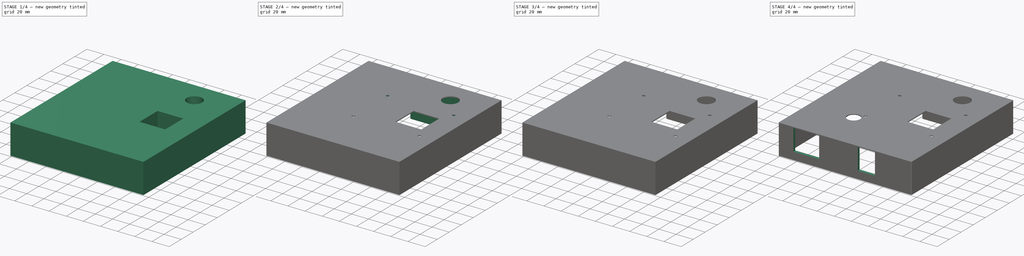
[diagram: build sequence overview — one tinted view per stage of 4, left to right]
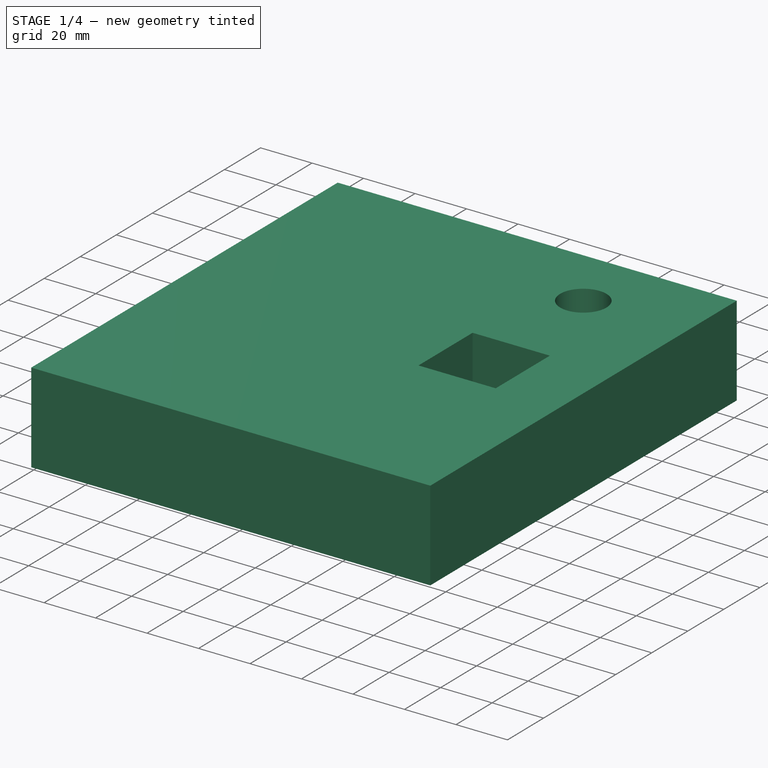
[diagram: stage 1 of 4 — iso view after this stage's code; geometry added in this stage tinted green]
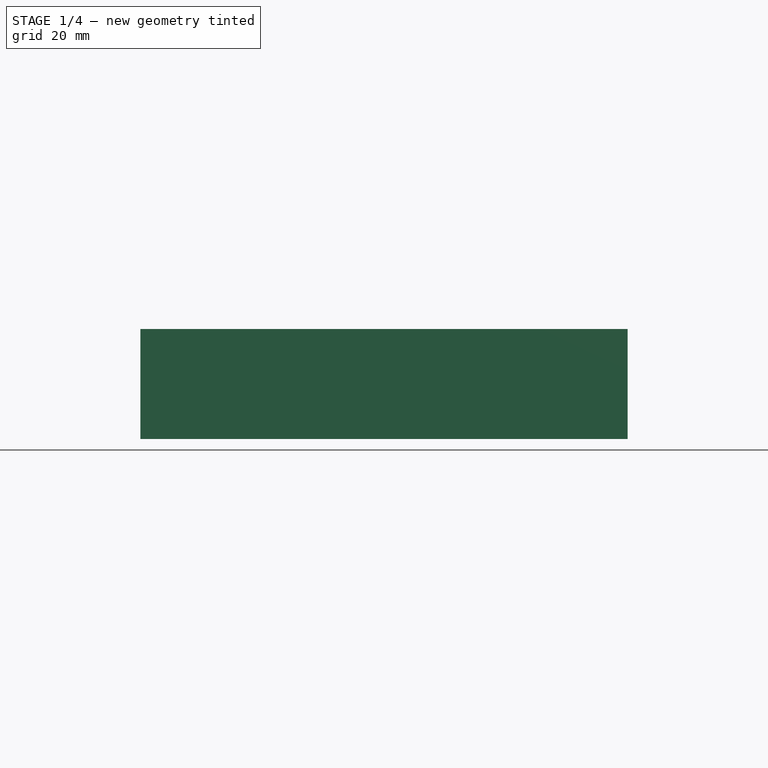
[diagram: stage 1 of 4 — front view after this stage's code; geometry added in this stage tinted green]
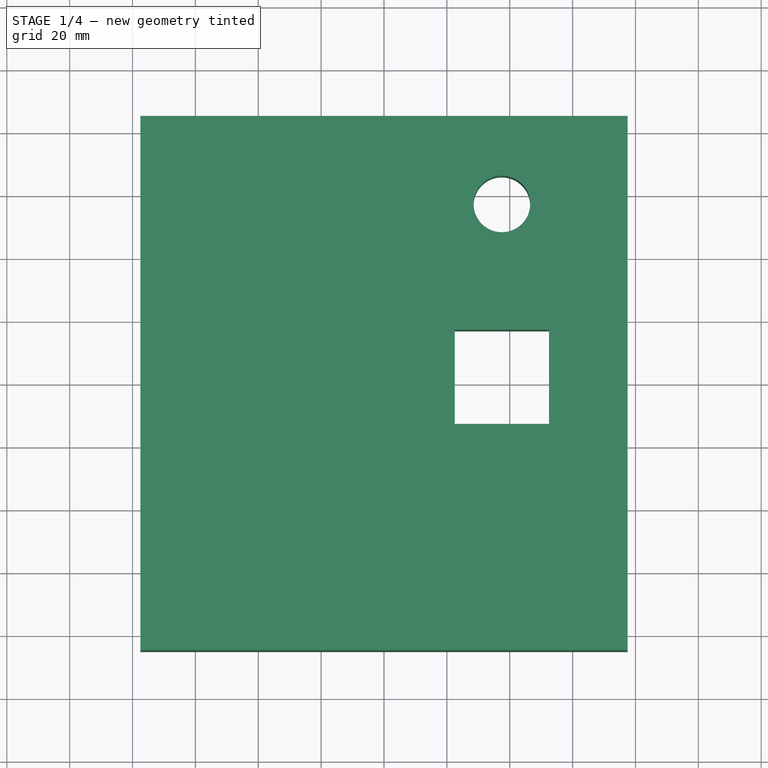
[diagram: stage 1 of 4 — top view after this stage's code; geometry added in this stage tinted green]
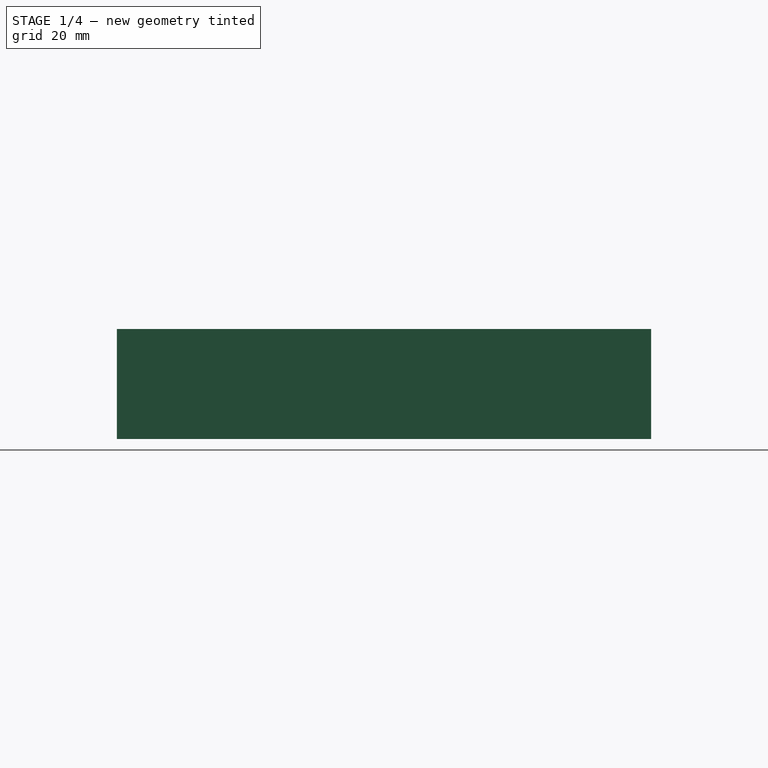
[diagram: stage 1 of 4 — right view after this stage's code; geometry added in this stage tinted green]
FCSTD DOCUMENT  (FreeCAD 0.20R29603 (Git))
Label: kotelo1
License: All rights reserved
LicenseURL: http://en.wikipedia.org/wiki/All_rights_reserved
objects: PartDesign::ShapeBinder×8, PartDesign::Pocket×8, Sketcher::SketchObject×5, PartDesign::Pad×3, PartDesign::Fillet×1, PartDesign::Body×1
note: 38 computed .brp shape members not serialized (recipe doc carries the construction recipe); baked Part::Feature solids carry a one-line shape summary decoded from their .brp

FEATURE [Sketcher::SketchObject] Sketch
  FullyConstrained = true
  MapMode = 5
  Support = -> [XY_Plane]
  sketch-geometry (27):
    g0: LineSegment StartX=-77.5 StartY=85 StartZ=0 EndX=77.5 EndY=85 EndZ=0
    g1: LineSegment StartX=77.5 StartY=85 StartZ=0 EndX=77.5 EndY=-85 EndZ=0
    g2: LineSegment StartX=77.5 StartY=-85 StartZ=0 EndX=-77.5 EndY=-85 EndZ=0
    g3: LineSegment StartX=-77.5 StartY=-85 StartZ=0 EndX=-77.5 EndY=85 EndZ=0
    g4: LineSegment StartX=22.5 StartY=17 StartZ=0 EndX=52.5 EndY=17 EndZ=0
    g5: LineSegment StartX=52.5 StartY=17 StartZ=0 EndX=52.5 EndY=-13 EndZ=0
    g6: LineSegment StartX=52.5 StartY=-13 StartZ=0 EndX=22.5 EndY=-13 EndZ=0
    g7: LineSegment StartX=22.5 StartY=-13 StartZ=0 EndX=22.5 EndY=17 EndZ=0
    g8: Circle CenterX=37.5 CenterY=57 CenterZ=0 NormalX=0 NormalY=0 NormalZ=1 AngleXU=0 Radius=9
    g9: GeomPoint X=37.5 Y=2 Z=0
    g10: Circle CenterX=-17.5 CenterY=31 CenterZ=0 NormalX=0 NormalY=0 NormalZ=1 AngleXU=0 Radius=1.7
    g11: Circle CenterX=59.5 CenterY=-26 CenterZ=0 NormalX=0 NormalY=0 NormalZ=1 AngleXU=0 Radius=1.7
    g12: Circle CenterX=-17.5 CenterY=-26 CenterZ=0 NormalX=0 NormalY=0 NormalZ=1 AngleXU=0 Radius=1.7
    g13: Circle CenterX=59.5 CenterY=31 CenterZ=0 NormalX=0 NormalY=0 NormalZ=1 AngleXU=0 Radius=1.7
    g14: LineSegment StartX=-17.5 StartY=31 StartZ=0 EndX=59.5 EndY=31 EndZ=0
    g15: LineSegment StartX=59.5 StartY=31 StartZ=0 EndX=59.5 EndY=-26 EndZ=0
    g16: LineSegment StartX=59.5 StartY=-26 StartZ=0 EndX=-17.5 EndY=-26 EndZ=0
    g17: LineSegment StartX=-17.5 StartY=-26 StartZ=0 EndX=-17.5 EndY=31 EndZ=0
    g18: LineSegment StartX=-74.5 StartY=82 StartZ=0 EndX=74.5 EndY=82 EndZ=0
    g19: LineSegment StartX=74.5 StartY=82 StartZ=0 EndX=74.5 EndY=-82 EndZ=0
    g20: LineSegment StartX=74.5 StartY=-82 StartZ=0 EndX=-74.5 EndY=-82 EndZ=0
    g21: LineSegment StartX=-74.5 StartY=-82 StartZ=0 EndX=-74.5 EndY=82 EndZ=0
    g22: LineSegment StartX=5.5 StartY=39 StartZ=0 EndX=65.5 EndY=39 EndZ=0
    g23: LineSegment StartX=65.5 StartY=39 StartZ=0 EndX=65.5 EndY=36 EndZ=0
    g24: LineSegment StartX=65.5 StartY=36 StartZ=0 EndX=5.5 EndY=36 EndZ=0
    g25: LineSegment StartX=5.5 StartY=36 StartZ=0 EndX=5.5 EndY=39 EndZ=0
    g26: Circle CenterX=-25.5 CenterY=-34 CenterZ=0 NormalX=0 NormalY=0 NormalZ=1 AngleXU=0 Radius=7.5
  constraints (74):
    c: Coincident(g0,g1)
    c: Coincident(g1,g2)
    c: Coincident(g2,g3)
    c: Coincident(g3,g0)
    c: Horizontal(g0)
    c: Horizontal(g2)
    c: Vertical(g1)
    c: Vertical(g3)
    c: DistanceX(g0,g0) = 155
    c: DistanceY(g1,g0) = 170
    c: Symmetric(g2,g0,g-1)
    c: Coincident(g4,g5)
    c: Coincident(g5,g6)
    c: Coincident(g6,g7)
    c: Coincident(g7,g4)
    c: Horizontal(g4)
    c: Horizontal(g6)
    c: Vertical(g5)
    c: Vertical(g7)
    c: DistanceY(g6,g4) = 30
    c: DistanceX(g4,g4) = 30
    c: Diameter(g8) = 18
    c: Symmetric(g6,g4,g9)
    c: Vertical(g9,g8)
    c: DistanceY(g9,g8) = 55
    c: DistanceX(g8,g0) = 40
    c: DistanceY(g8,g0) = 28
    c: Diameter(g10) = 3.4
    c: Diameter(g12) = 3.4
    c: Diameter(g13) = 3.4
    c: Diameter(g11) = 3.4
    c: Coincident(g14,g15)
    c: Coincident(g15,g16)
    c: Coincident(g16,g17)
    c: Coincident(g17,g14)
    c: Horizontal(g14)
    c: Horizontal(g16)
    c: Vertical(g15)
    c: Vertical(g17)
    c: DistanceX(g14,g14) = 77
    c: DistanceY(g15,g14) = 57
    c: Coincident(g10,g14)
    c: Coincident(g13,g14)
    c: Coincident(g12,g16)
    c: Coincident(g11,g15)
    c: DistanceY(g11,g9) = 28
    c: DistanceX(g9,g11) = 22
    c: Coincident(g18,g19)
    c: Coincident(g19,g20)
    c: Coincident(g20,g21)
    c: Coincident(g21,g18)
    c: Horizontal(g18)
    c: Horizontal(g20)
    c: Vertical(g19)
    c: Vertical(g21)
    c: DistanceX(g18,g18) = 149
    c: DistanceX(g0,g18) = 3
    c: DistanceY(g18,g0) = 3
    c: DistanceY(g20,g18) = 164
    c: Coincident(g22,g23)
    c: Coincident(g23,g24)
    c: Coincident(g24,g25)
    c: Coincident(g25,g22)
    c: Horizontal(g22)
    c: Horizontal(g24)
    c: Vertical(g23)
    c: Vertical(g25)
    c: DistanceY(g13,g23) = 5
    c: DistanceY(g23,g22) = 3
    c: DistanceX(g24,g23) = 60
    c: Diameter(g26) = 15
    c: DistanceX(g26,g12) = 8
    c: DistanceY(g26,g12) = 8
    c: DistanceX(g23,g13) = -6
FEATURE [PartDesign::ShapeBinder] ShapeBinder
  Support = -> [Sketch]
  TraceSupport = false
FEATURE [PartDesign::Pad] Pad
  Direction = (0,0,1)
  Length = 35
  Length2 = 10
  Profile = -> ShapeBinder
  Reversed = true
  Type = 0
FEATURE [PartDesign::ShapeBinder] ShapeBinder001
  Support = -> [Sketch]
  TraceSupport = false
FEATURE [PartDesign::Pocket] Pocket
  BaseFeature = -> Pad
  Direction = (0,0,-1)
  Length = 5
  Length2 = 5
  Profile = -> ShapeBinder001
  Type = 1
FEATURE [PartDesign::ShapeBinder] ShapeBinder002
  Support = -> [Sketch]
  TraceSupport = false
FEATURE [PartDesign::Pocket] Pocket001
  BaseFeature = -> Pocket
  Direction = (0,0,-1)
  Length = 5
  Length2 = 5
  Profile = -> ShapeBinder002
  Type = 1
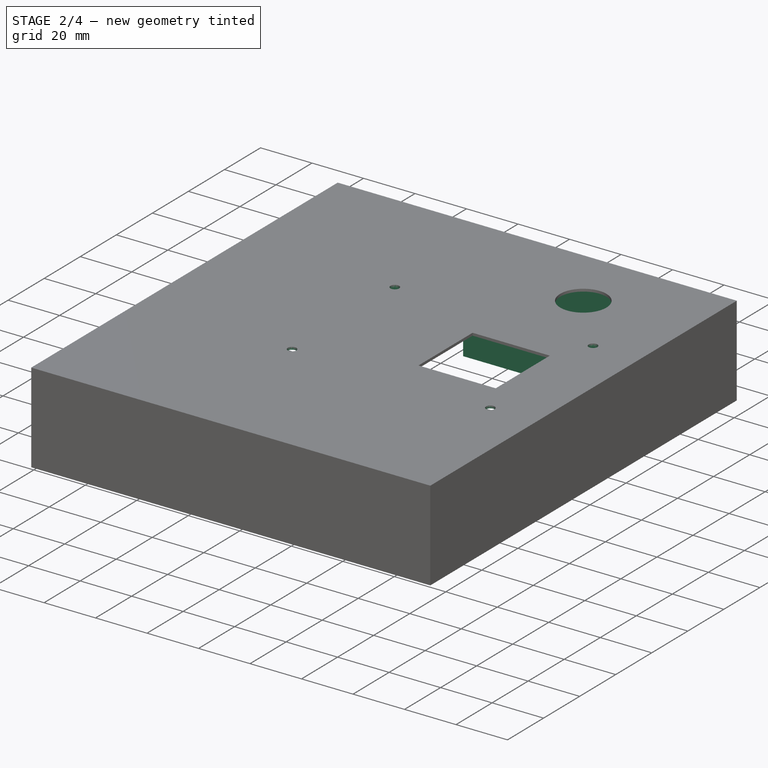
[diagram: stage 2 of 4 — iso view after this stage's code; geometry added in this stage tinted green]
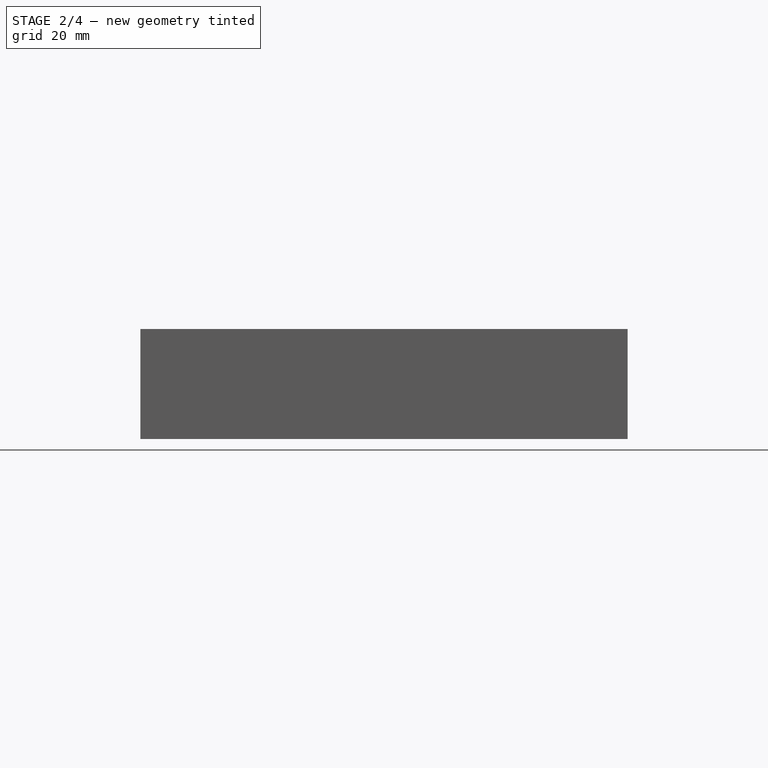
[diagram: stage 2 of 4 — front view after this stage's code; geometry added in this stage tinted green]
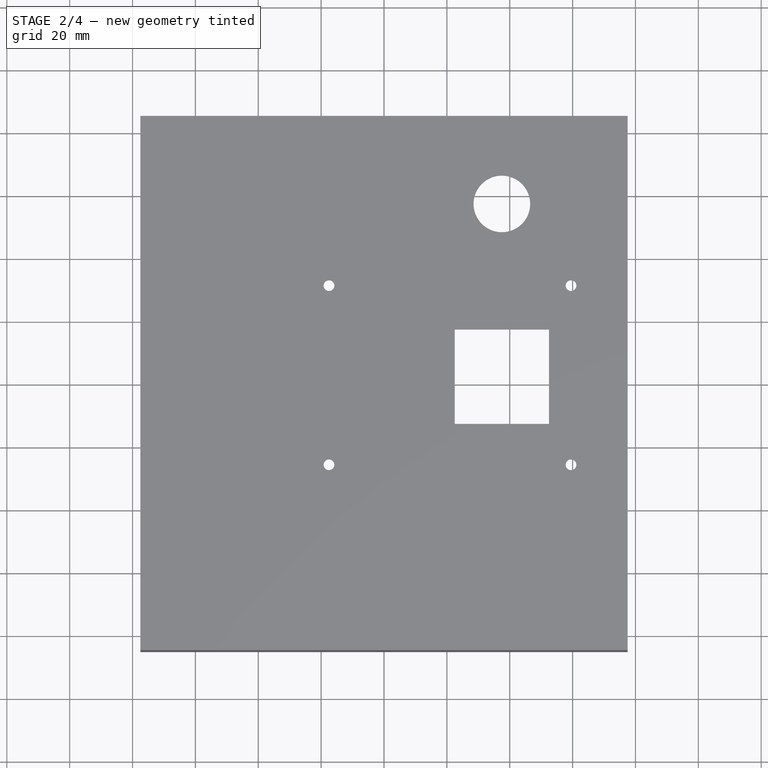
[diagram: stage 2 of 4 — top view after this stage's code; geometry added in this stage tinted green]
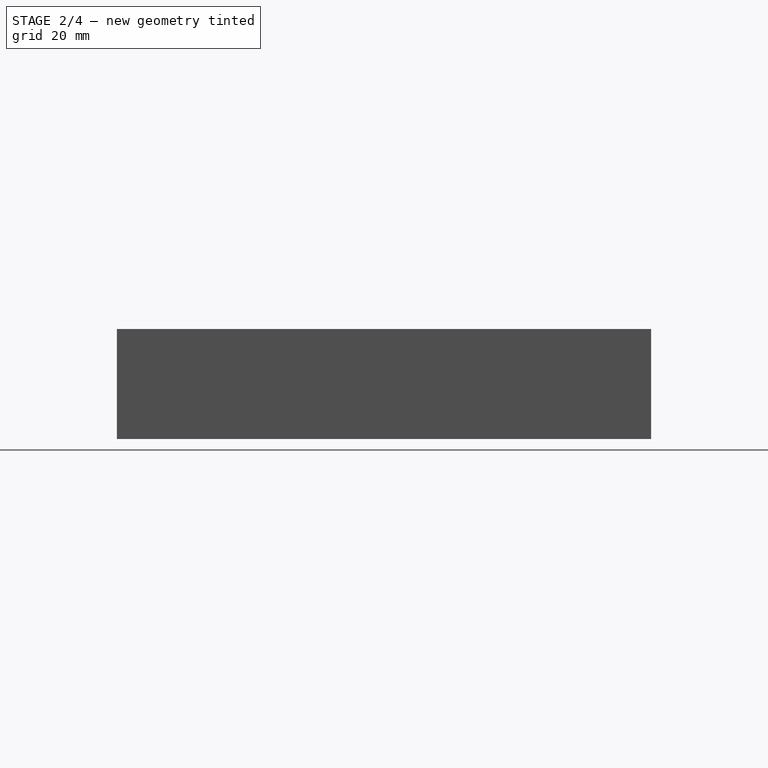
[diagram: stage 2 of 4 — right view after this stage's code; geometry added in this stage tinted green]
FEATURE [PartDesign::ShapeBinder] ShapeBinder003
  Support = -> [Sketch]
  TraceSupport = false
FEATURE [PartDesign::Pocket] Pocket002
  BaseFeature = -> Pocket001
  Direction = (0,0,-1)
  Length = 5
  Length2 = 5
  Profile = -> ShapeBinder003
  Type = 1
FEATURE [Sketcher::SketchObject] Sketch001
  AttachmentOffset = pos=(0,0,-1) rot=(0,0,1;0rad)
  ExternalGeometry = -> [Sketch]
  FullyConstrained = true
  MapMode = 5
  Placement = pos=(0,0,-1) rot=(0,0,1;0rad)
  Support = -> [XY_Plane]
  sketch-geometry (4):
    g0: LineSegment StartX=-74.5 StartY=82 StartZ=0 EndX=74.5 EndY=82 EndZ=0
    g1: LineSegment StartX=74.5 StartY=82 StartZ=0 EndX=74.5 EndY=-82 EndZ=0
    g2: LineSegment StartX=74.5 StartY=-82 StartZ=0 EndX=-74.5 EndY=-82 EndZ=0
    g3: LineSegment StartX=-74.5 StartY=-82 StartZ=0 EndX=-74.5 EndY=82 EndZ=0
  constraints (10):
    c: Coincident(g0,g1)
    c: Coincident(g1,g2)
    c: Coincident(g2,g3)
    c: Coincident(g3,g0)
    c: Horizontal(g0)
    c: Horizontal(g2)
    c: Vertical(g1)
    c: Vertical(g3)
    c: Coincident(g0,g-4)
    c: Coincident(g1,g-6)
FEATURE [PartDesign::Pocket] Pocket003
  BaseFeature = -> Pocket002
  Direction = (0,0,-1)
  Length = 5
  Length2 = 5
  Profile = -> Sketch001
  ReferenceAxis = -> Sketch001 [N_Axis]
  Type = 1
FEATURE [PartDesign::ShapeBinder] ShapeBinder004
  Support = -> [Sketch]
  TraceSupport = false
FEATURE [PartDesign::Pad] Pad001
  BaseFeature = -> Pocket003
  Direction = (0,0,1)
  Length = 20
  Length2 = 10
  Profile = -> ShapeBinder004
  Reversed = true
  Type = 0
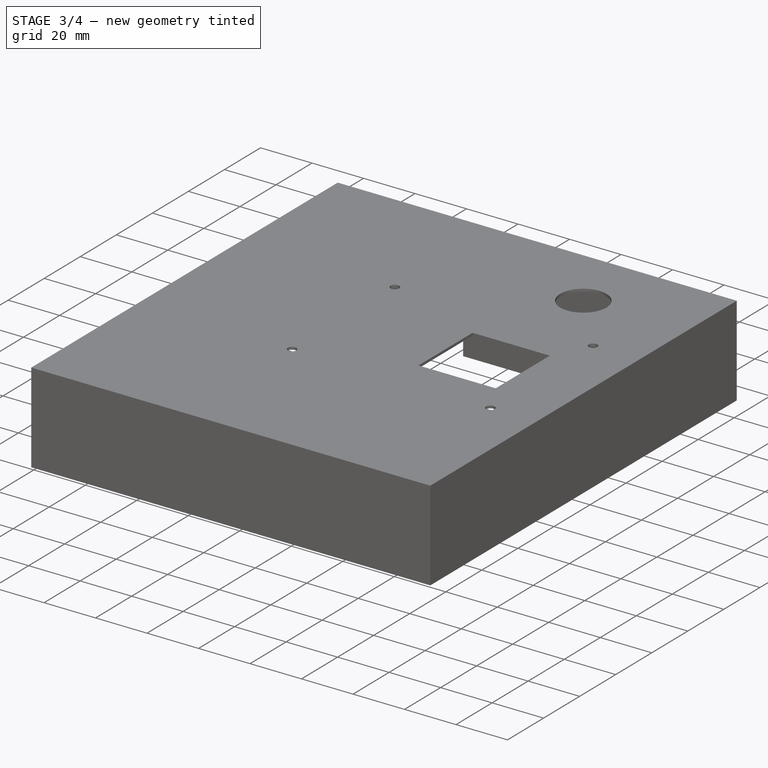
[diagram: stage 3 of 4 — iso view after this stage's code; geometry added in this stage tinted green]
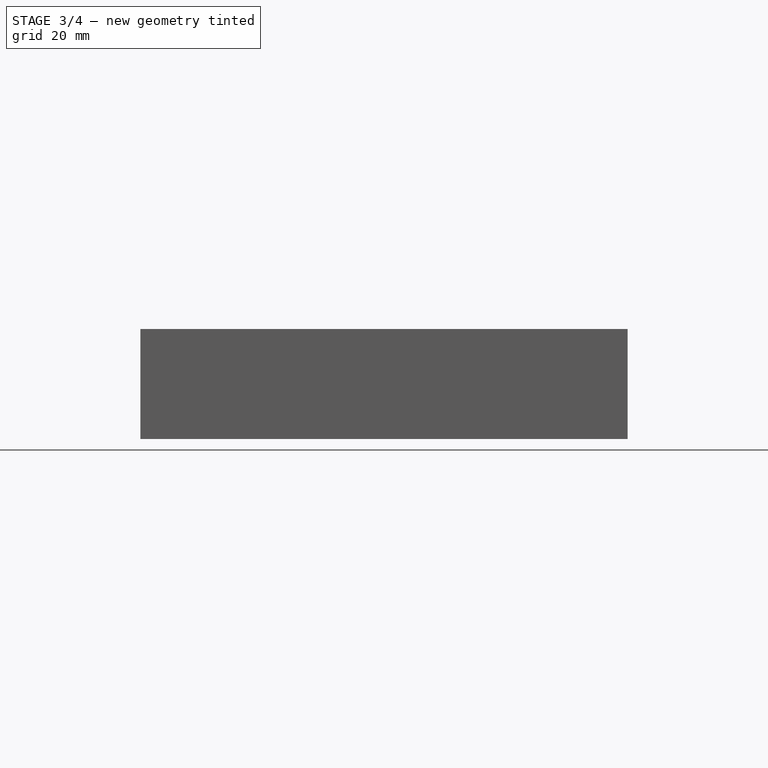
[diagram: stage 3 of 4 — front view after this stage's code; geometry added in this stage tinted green]
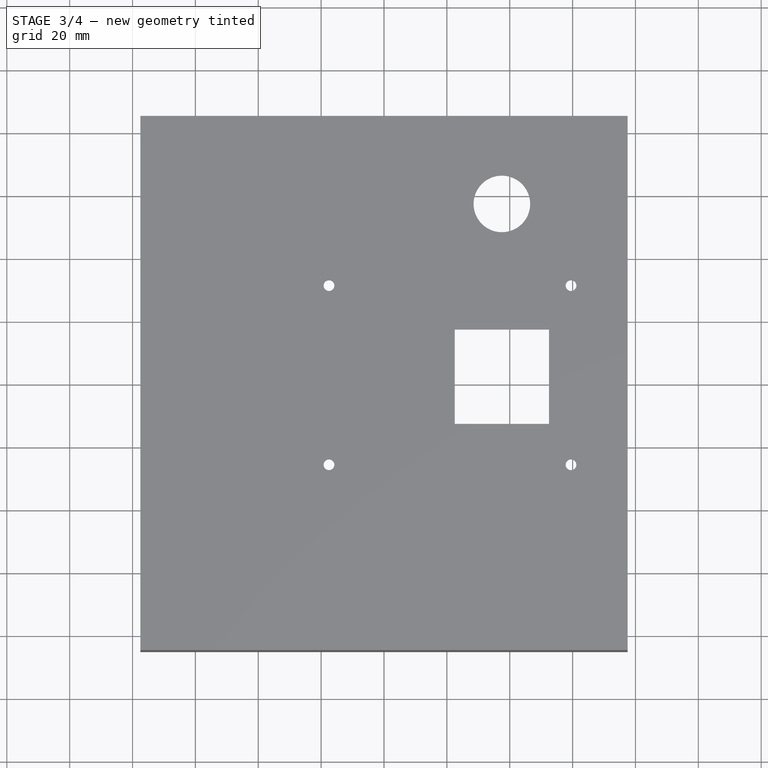
[diagram: stage 3 of 4 — top view after this stage's code; geometry added in this stage tinted green]
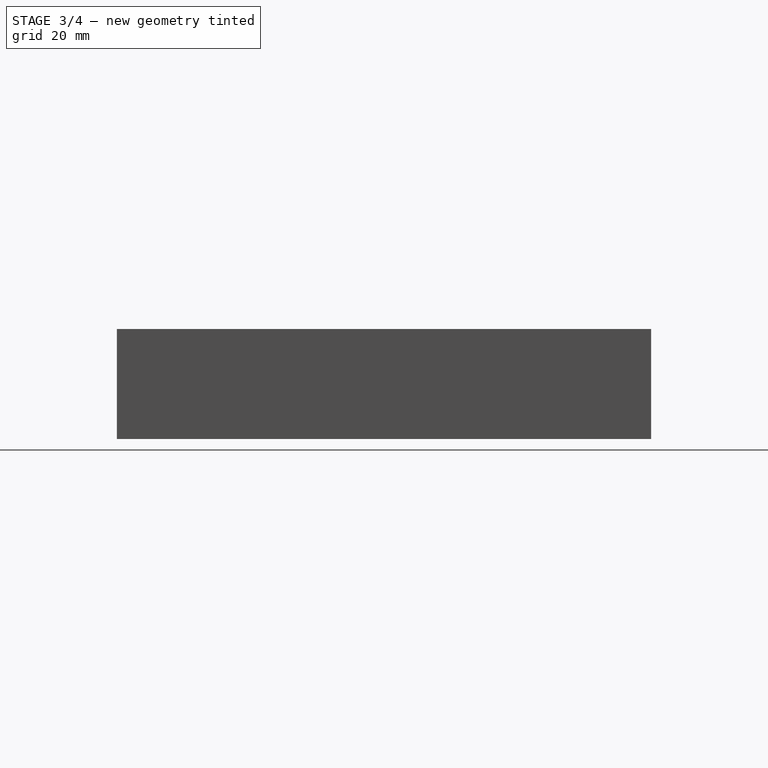
[diagram: stage 3 of 4 — right view after this stage's code; geometry added in this stage tinted green]
FEATURE [Sketcher::SketchObject] Sketch002
  ExternalGeometry = -> [Pad001]
  FullyConstrained = true
  MapMode = 5
  Placement = pos=(0,0,0) rot=(1,0,0;1.5708rad)
  Support = -> [XZ_Plane]
  sketch-geometry (8):
    g0: LineSegment StartX=44.5 StartY=-11 StartZ=0 EndX=59.5 EndY=-11 EndZ=0
    g1: LineSegment StartX=59.5 StartY=-11 StartZ=0 EndX=59.5 EndY=-16 EndZ=0
    g2: LineSegment StartX=59.5 StartY=-16 StartZ=0 EndX=44.5 EndY=-16 EndZ=0
    g3: LineSegment StartX=44.5 StartY=-16 StartZ=0 EndX=44.5 EndY=-11 EndZ=0
    g4: LineSegment StartX=44.5 StartY=-22 StartZ=0 EndX=59.5 EndY=-22 EndZ=0
    g5: LineSegment StartX=59.5 StartY=-22 StartZ=0 EndX=59.5 EndY=-27 EndZ=0
    g6: LineSegment StartX=59.5 StartY=-27 StartZ=0 EndX=44.5 EndY=-27 EndZ=0
    g7: LineSegment StartX=44.5 StartY=-27 StartZ=0 EndX=44.5 EndY=-22 EndZ=0
  constraints (24):
    c: Coincident(g0,g1)
    c: Coincident(g1,g2)
    c: Coincident(g2,g3)
    c: Coincident(g3,g0)
    c: Horizontal(g0)
    c: Horizontal(g2)
    c: Vertical(g1)
    c: Vertical(g3)
    c: DistanceX(g0,g0) = 15
    c: DistanceY(g1,g0) = 5
    c: DistanceY(g-4,g1) = 4
    c: DistanceX(g1,g-4) = 6
    c: Coincident(g4,g5)
    c: Coincident(g5,g6)
    c: Coincident(g6,g7)
    c: Coincident(g7,g4)
    c: Horizontal(g4)
    c: Horizontal(g6)
    c: Vertical(g5)
    c: Vertical(g7)
    c: DistanceY(g4,g1) = 6
    c: DistanceY(g5,g4) = 5
    c: DistanceX(g4,g4) = 15
    c: Vertical(g4,g1)
FEATURE [PartDesign::Pocket] Pocket004
  BaseFeature = -> Pad001
  Direction = (0,1,2e-16)
  Length = 5
  Length2 = 5
  Profile = -> Sketch002
  ReferenceAxis = -> Sketch002 [N_Axis]
  Type = 1
FEATURE [Sketcher::SketchObject] Sketch003
  AttachmentOffset = pos=(0,0,-1) rot=(0,0,1;0rad)
  ExternalGeometry = -> [Sketch]
  FullyConstrained = true
  MapMode = 5
  Placement = pos=(0,0,-1) rot=(0,0,1;0rad)
  Support = -> [XY_Plane]
  sketch-geometry (20):
    g0: ArcOfCircle CenterX=-74.5 CenterY=82 CenterZ=0 NormalX=0 NormalY=0 NormalZ=1 AngleXU=0 Radius=6 StartAngle=4.71239 EndAngle=6.28319
    g1: Circle CenterX=-72.3787 CenterY=79.8787 CenterZ=0 NormalX=0 NormalY=0 NormalZ=1 AngleXU=0 Radius=1
    g2: LineSegment StartX=-74.5 StartY=82 StartZ=0 EndX=-72.3787 EndY=79.8787 EndZ=0
    g3: Circle CenterX=72.3787 CenterY=-79.8787 CenterZ=0 NormalX=0 NormalY=0 NormalZ=1 AngleXU=0 Radius=1
    g4: Circle CenterX=72.3787 CenterY=79.8787 CenterZ=0 NormalX=0 NormalY=0 NormalZ=1 AngleXU=0 Radius=1
    g5: Circle CenterX=-72.3787 CenterY=-79.8787 CenterZ=0 NormalX=0 NormalY=0 NormalZ=1 AngleXU=0 Radius=1
    g6: ArcOfCircle CenterX=-74.5 CenterY=-82 CenterZ=0 NormalX=0 NormalY=0 NormalZ=1 AngleXU=0 Radius=6 StartAngle=5e-16 EndAngle=1.5708
    g7: LineSegment StartX=-72.3787 StartY=-79.8787 StartZ=0 EndX=-74.5 EndY=-82 EndZ=0
    g8: ArcOfCircle CenterX=74.5 CenterY=-82 CenterZ=0 NormalX=0 NormalY=0 NormalZ=1 AngleXU=0 Radius=6 StartAngle=1.5708 EndAngle=3.14159
    g9: LineSegment StartX=72.3787 StartY=-79.8787 StartZ=0 EndX=74.5 EndY=-82 EndZ=0
    g10: ArcOfCircle CenterX=74.5 CenterY=82 CenterZ=0 NormalX=0 NormalY=0 NormalZ=1 AngleXU=0 Radius=6 StartAngle=3.14159 EndAngle=4.71239
    g11: LineSegment StartX=72.3787 StartY=79.8787 StartZ=0 EndX=74.5 EndY=82 EndZ=0
    g12: LineSegment StartX=-74.5 StartY=76 StartZ=0 EndX=-74.5 EndY=82 EndZ=0
    g13: LineSegment StartX=-74.5 StartY=82 StartZ=0 EndX=-68.5 EndY=82 EndZ=0
    g14: LineSegment StartX=68.5 StartY=82 StartZ=0 EndX=74.5 EndY=82 EndZ=0
    g15: LineSegment StartX=74.5 StartY=76 StartZ=0 EndX=74.5 EndY=82 EndZ=0
    g16: LineSegment StartX=68.5 StartY=-82 StartZ=0 EndX=74.5 EndY=-82 EndZ=0
    g17: LineSegment StartX=74.5 StartY=-82 StartZ=0 EndX=74.5 EndY=-76 EndZ=0
    g18: LineSegment StartX=-74.5 StartY=-76 StartZ=0 EndX=-74.5 EndY=-82 EndZ=0
    g19: LineSegment StartX=-74.5 StartY=-82 StartZ=0 EndX=-68.5 EndY=-82 EndZ=0
  constraints (52):
    c: Coincident(g0,g-5)
    c: Radius(g0) = 6
    c: Angle(g0) = 1.5708
    c: Diameter(g1) = 2
    c: Distance(g0,g1) = 3
    c: Coincident(g2,g0)
    c: Coincident(g2,g1)
    c: Angle(g-7,g2) = 0.785398
    c: Equal(g1,g3)
    c: Equal(g1,g4)
    c: Equal(g1,g5)
    c: Coincident(g6,g-10)
    c: PointOnObject(g6,g-7)
    c: PointOnObject(g6,g-10)
    c: Radius(g6) = 6
    c: Distance(g5,g6) = 3
    c: Coincident(g7,g5)
    c: Coincident(g7,g6)
    c: Angle(g-10,g7) = 0.785398
    c: Coincident(g8,g-10)
    c: PointOnObject(g8,g-9)
    c: PointOnObject(g8,g-10)
    c: Radius(g8) = 6
    c: Distance(g3,g8) = 3
    c: Coincident(g9,g3)
    c: Coincident(g9,g8)
    c: Angle(g9,g-10) = 0.785398
    c: Coincident(g10,g-9)
    c: PointOnObject(g10,g-9)
    c: PointOnObject(g10,g-8)
    c: Radius(g10) = 6
    c: Distance(g4,g10) = 3
    c: Coincident(g11,g4)
    c: Coincident(g11,g10)
    c: Angle(g-8,g11) = 0.785398
    c: Coincident(g12,g0)
    c: Coincident(g12,g0)
    c: Vertical(g12)
    c: Coincident(g13,g0)
    c: Coincident(g13,g0)
    c: Coincident(g14,g10)
    c: Coincident(g14,g10)
    c: Coincident(g15,g10)
    c: Coincident(g15,g10)
    c: Coincident(g16,g8)
    c: Coincident(g16,g8)
    c: Coincident(g17,g8)
    c: Coincident(g17,g8)
    c: Coincident(g18,g6)
    c: Coincident(g18,g6)
    c: Coincident(g19,g6)
    c: Coincident(g19,g6)
FEATURE [PartDesign::ShapeBinder] ShapeBinder005
  Support = -> [Sketch003]
  TraceSupport = false
FEATURE [PartDesign::Pad] Pad002
  BaseFeature = -> Pocket004
  Direction = (0,0,1)
  Length = 34
  Length2 = 10
  Profile = -> ShapeBinder005
  Reversed = true
  Type = 0
FEATURE [PartDesign::ShapeBinder] ShapeBinder006
  Support = -> [Sketch003]
  TraceSupport = false
FEATURE [PartDesign::Pocket] Pocket005
  BaseFeature = -> Pad002
  Direction = (0,0,-1)
  Length = 5
  Length2 = 5
  Profile = -> ShapeBinder006
  Type = 1
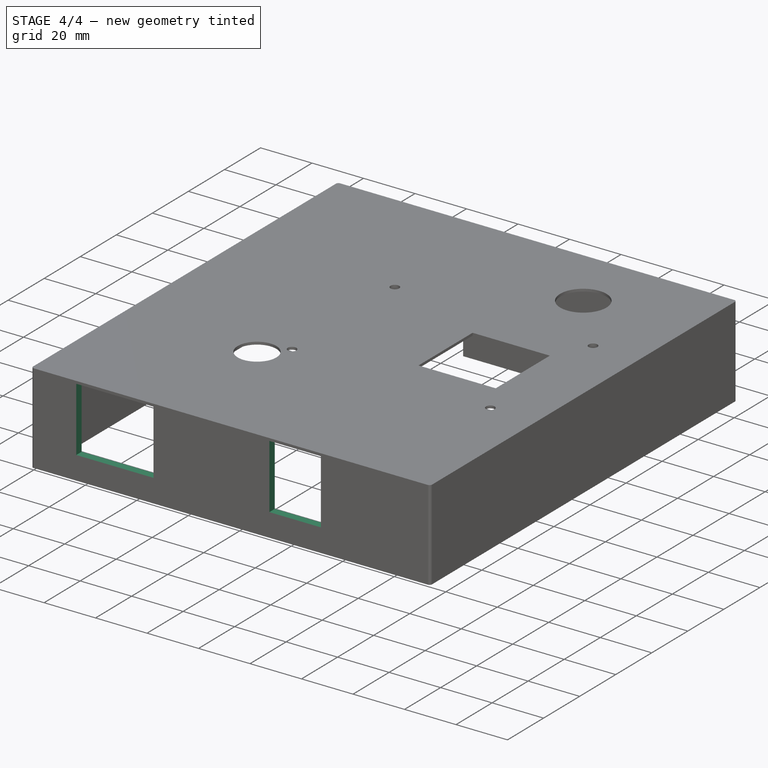
[diagram: stage 4 of 4 — iso view after this stage's code; geometry added in this stage tinted green]
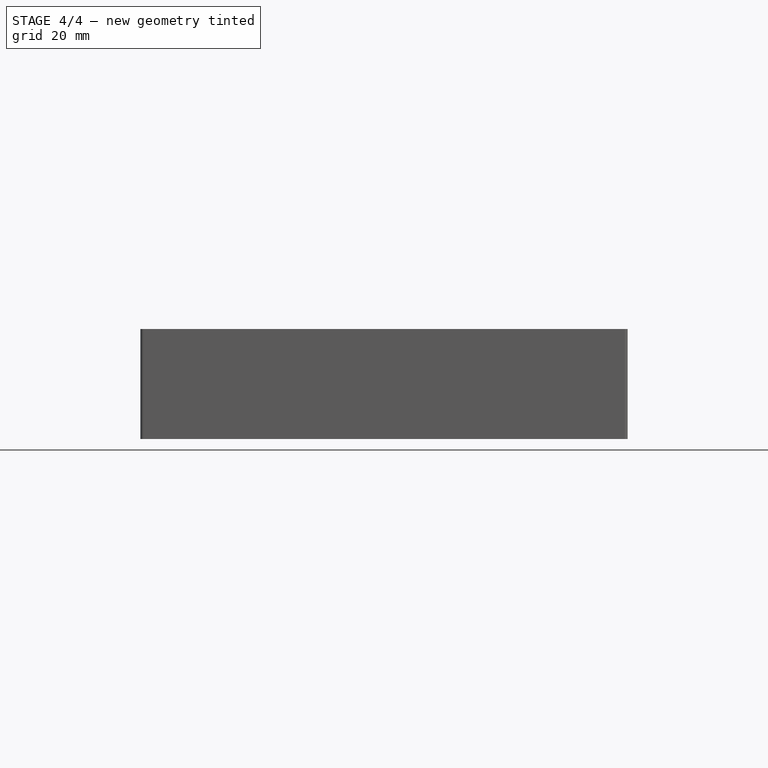
[diagram: stage 4 of 4 — front view after this stage's code; geometry added in this stage tinted green]
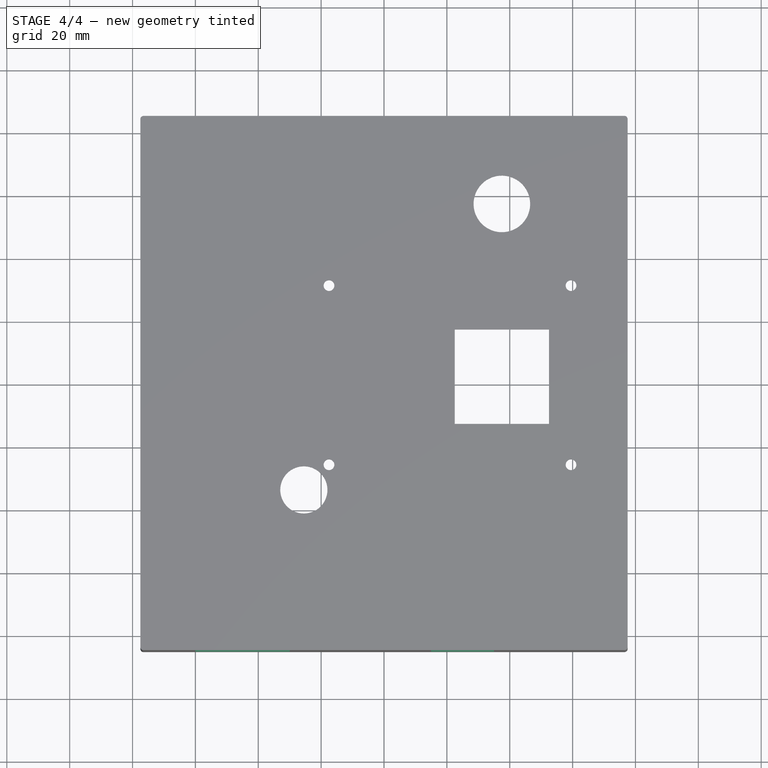
[diagram: stage 4 of 4 — top view after this stage's code; geometry added in this stage tinted green]
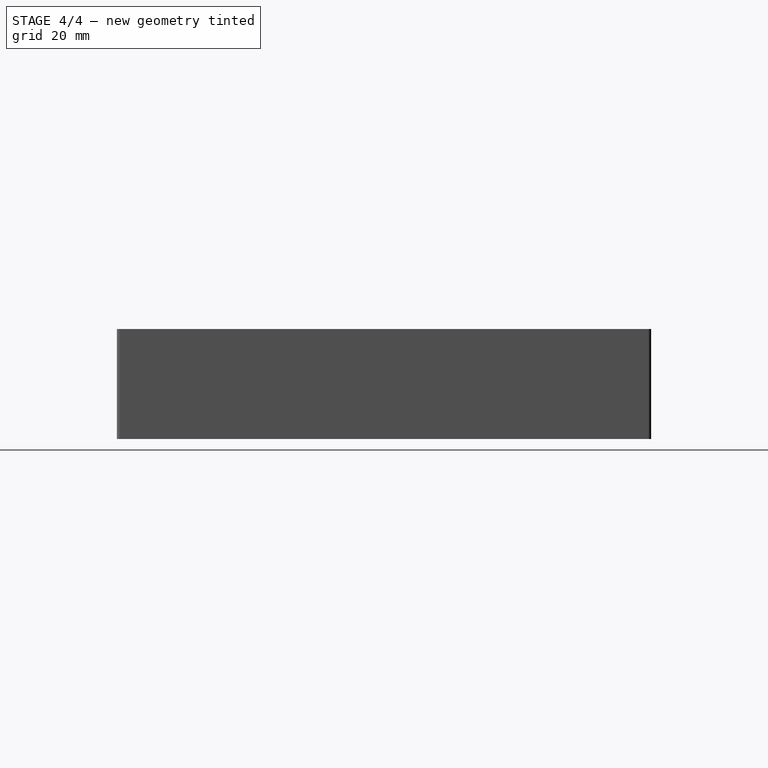
[diagram: stage 4 of 4 — right view after this stage's code; geometry added in this stage tinted green]
FEATURE [Sketcher::SketchObject] Sketch004
  FullyConstrained = true
  MapMode = 5
  Placement = pos=(0,0,0) rot=(1,0,0;1.5708rad)
  Support = -> [XZ_Plane]
  sketch-geometry (8):
    g0: LineSegment StartX=-60 StartY=-1 StartZ=0 EndX=-30 EndY=-1 EndZ=0
    g1: LineSegment StartX=-30 StartY=-1 StartZ=0 EndX=-30 EndY=-26 EndZ=0
    g2: LineSegment StartX=-30 StartY=-26 StartZ=0 EndX=-60 EndY=-26 EndZ=0
    g3: LineSegment StartX=-60 StartY=-26 StartZ=0 EndX=-60 EndY=-1 EndZ=0
    g4: LineSegment StartX=15 StartY=-1 StartZ=0 EndX=35 EndY=-1 EndZ=0
    g5: LineSegment StartX=35 StartY=-1 StartZ=0 EndX=35 EndY=-26 EndZ=0
    g6: LineSegment StartX=35 StartY=-26 StartZ=0 EndX=15 EndY=-26 EndZ=0
    g7: LineSegment StartX=15 StartY=-26 StartZ=0 EndX=15 EndY=-1 EndZ=0
  constraints (24):
    c: Coincident(g0,g1)
    c: Coincident(g1,g2)
    c: Coincident(g2,g3)
    c: Coincident(g3,g0)
    c: Horizontal(g0)
    c: Horizontal(g2)
    c: Vertical(g1)
    c: Vertical(g3)
    c: DistanceY(g0,g-1) = 1
    c: DistanceY(g2,g0) = 25
    c: DistanceX(g2,g1) = 30
    c: Coincident(g4,g5)
    c: Coincident(g5,g6)
    c: Coincident(g6,g7)
    c: Coincident(g7,g4)
    c: Horizontal(g4)
    c: Horizontal(g6)
    c: Vertical(g5)
    c: Vertical(g7)
    c: DistanceY(g4,g-1) = 1
    c: DistanceX(g-1,g4) = 15
    c: DistanceX(g4,g4) = 20
    c: DistanceY(g5,g4) = 25
    c: DistanceX(g0,g4) = 45
FEATURE [PartDesign::Pocket] Pocket006
  BaseFeature = -> Pocket005
  Direction = (0,1,2e-16)
  Length = 5
  Length2 = 5
  Profile = -> Sketch004
  ReferenceAxis = -> Sketch004 [N_Axis]
  Reversed = true
  Type = 1
FEATURE [PartDesign::ShapeBinder] ShapeBinder007
  Support = -> [Sketch]
  TraceSupport = false
FEATURE [PartDesign::Pocket] Pocket007
  BaseFeature = -> Pocket006
  Direction = (0,0,-1)
  Length = 0
  Length2 = 5
  Profile = -> ShapeBinder007
  Type = 1
FEATURE [PartDesign::Fillet] Fillet
  Base = -> Pocket007 [Edge46,Edge13,Edge4,Edge1]
  BaseFeature = -> Pocket007
  Radius = 1
  SupportTransform = false
  UseAllEdges = false
FEATURE [PartDesign::Body] Body
  Group = -> [Sketch,ShapeBinder,Pad,ShapeBinder001,Pocket,ShapeBinder002,Pocket001,ShapeBinder003,Pocket002,Sketch001,Pocket003,ShapeBinder004,Pad001,Sketch002,Pocket004,Sketch003,ShapeBinder005,Pad002,ShapeBinder006,Pocket005,Sketch004,Pocket006,ShapeBinder007,Pocket007,Fillet]
  Origin = -> Origin
  Tip = -> Fillet
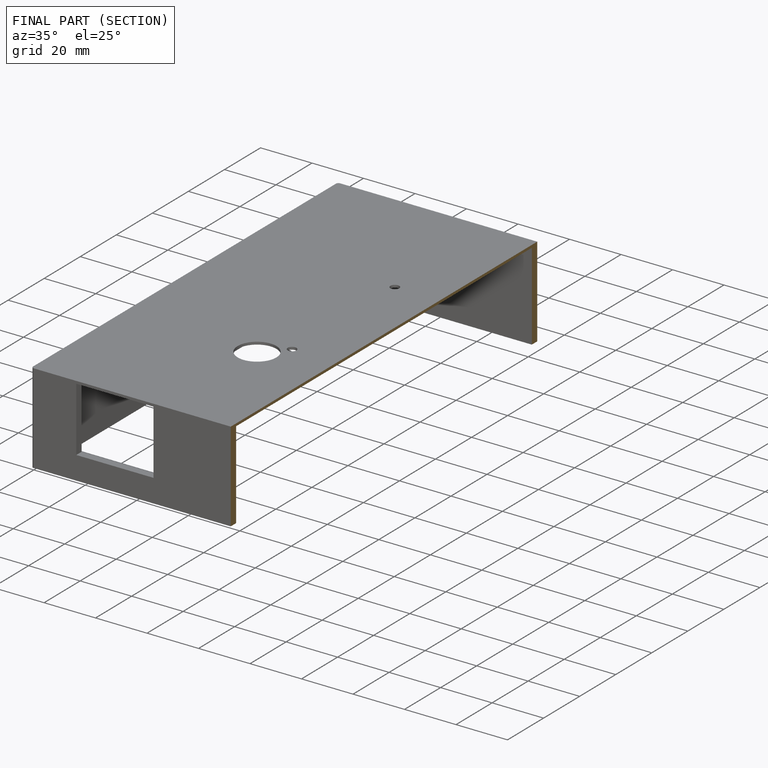
[diagram: finished part — half-section view (interior)]
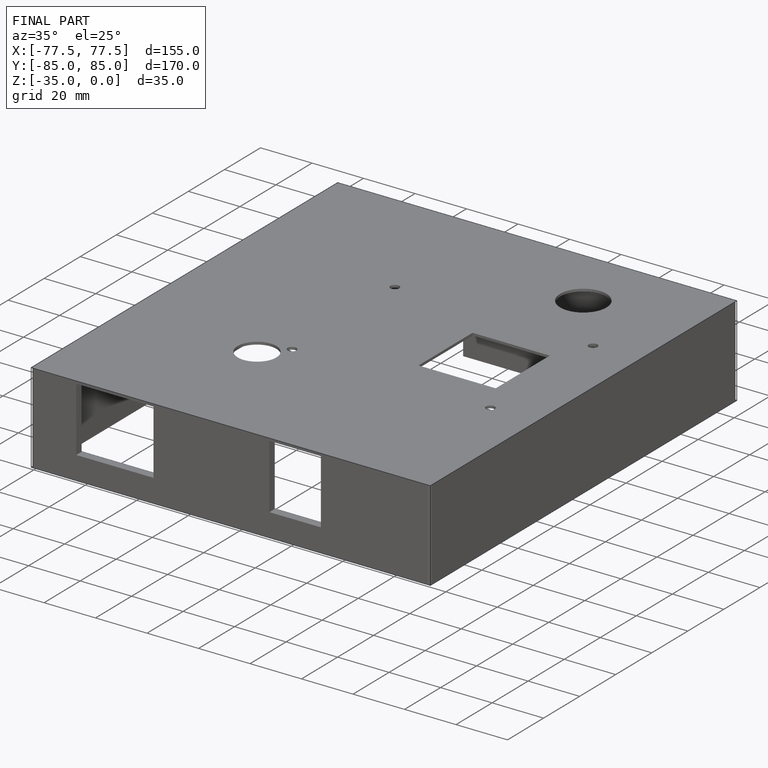
[diagram: finished part — iso view with bounding-box wireframe]
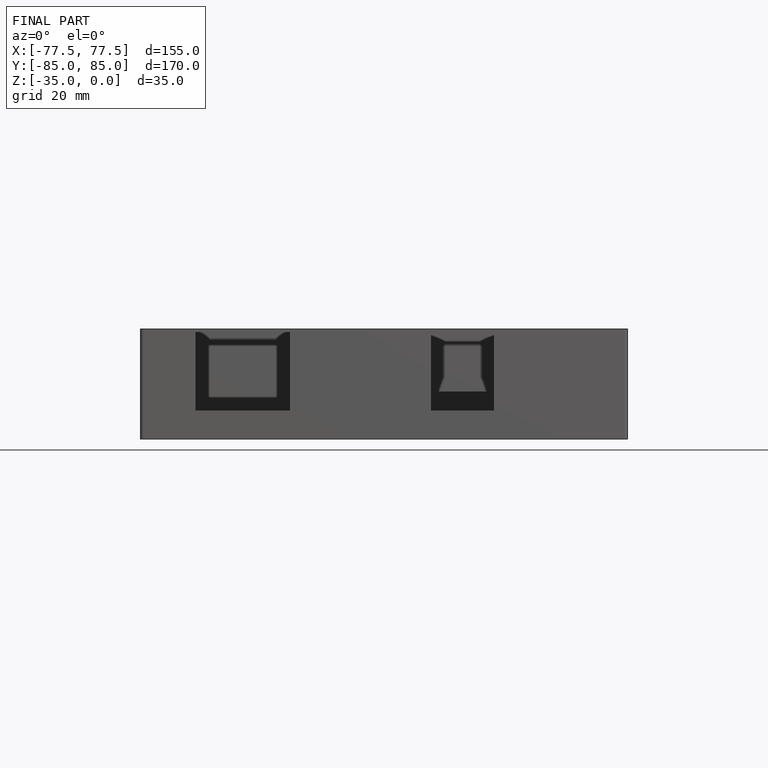
[diagram: finished part — front view with bounding-box wireframe]
